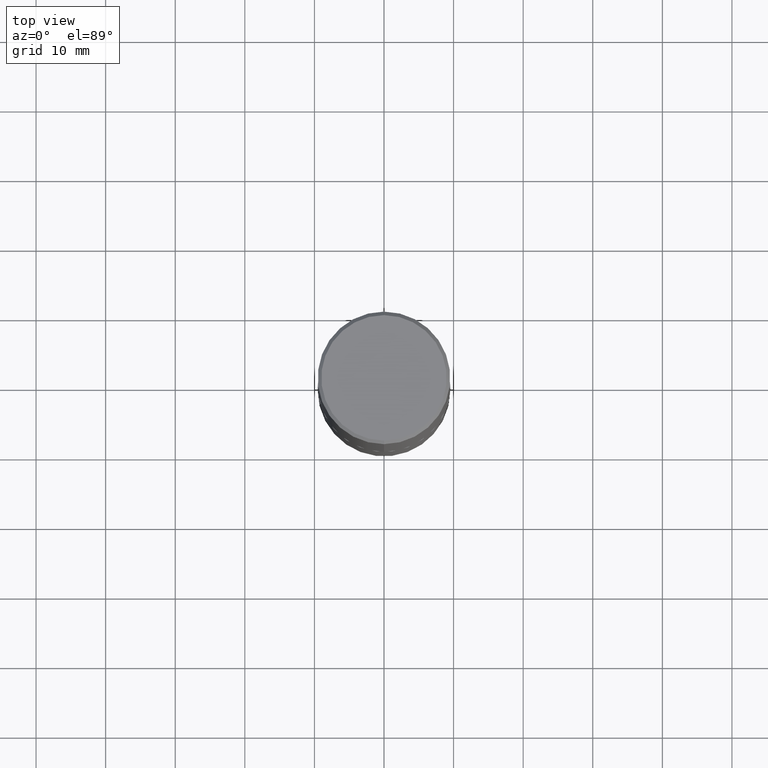
[diagram: clean part render]
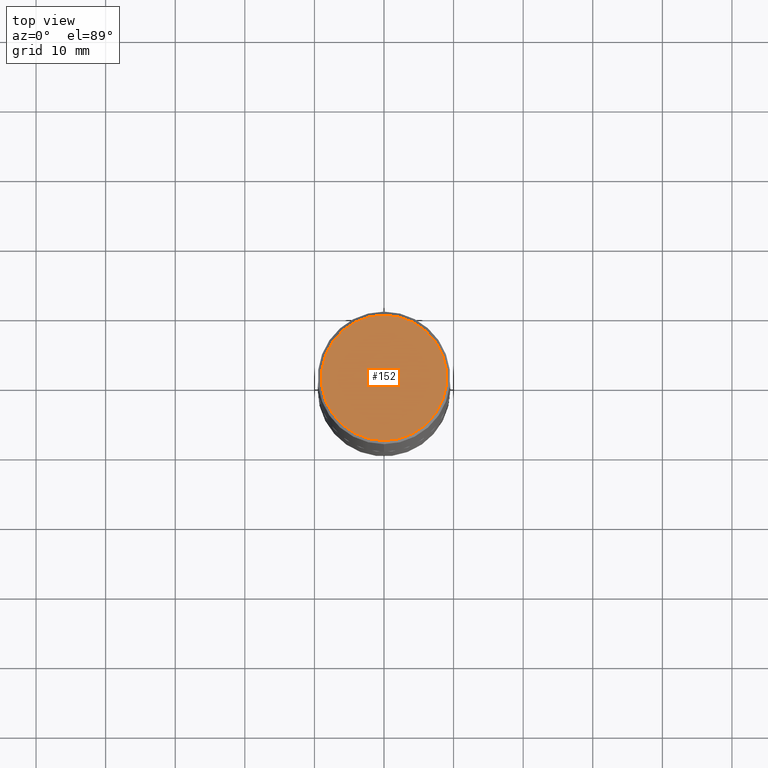
[diagram: same view with one face highlighted and labeled with its STEP entity id]
A machine part, top view. The second image highlights one B-rep face of the part: STEP entity #152.
In plain terms, the highlighted planar face has unit normal (0, -0, -1).
Its self-contained STEP definition (entity closure, byte-faithful):
#16 = CIRCLE ( 'NONE', #358, 0.3550000000000002598 ) ;
#60 = DIRECTION ( 'NONE',  ( 6.982962677686265922E-15, 1.000000000000000000, -3.491356886316728133E-15 ) ) ;
#61 = DIRECTION ( 'NONE',  ( -6.982962677686265922E-15, -1.000000000000000000, 3.491356886316728527E-15 ) ) ;
#62 = EDGE_CURVE ( 'NONE', #375, #205, #266, .T. ) ;
#103 = EDGE_LOOP ( 'NONE', ( #344, #114 ) ) ;
#114 = ORIENTED_EDGE ( 'NONE', *, *, #194, .T. ) ;
#131 = AXIS2_PLACEMENT_3D ( 'NONE', #158, #286, #282 ) ;
#152 = ADVANCED_FACE ( 'NONE', ( #312 ), #412, .F. ) ;
#158 = CARTESIAN_POINT ( 'NONE',  ( 5.533689563900664122E-45, -7.900079756676948008E-31, -2.262753426221999295E-16 ) ) ;
#193 = CARTESIAN_POINT ( 'NONE',  ( 2.478951750578626181E-15, 0.3550000000000002598, -1.352569365953539290E-15 ) ) ;
#194 = EDGE_CURVE ( 'NONE', #205, #375, #16, .T. ) ;
#205 = VERTEX_POINT ( 'NONE', #362 ) ;
#266 = CIRCLE ( 'NONE', #131, 0.3550000000000002598 ) ;
#282 = DIRECTION ( 'NONE',  ( -6.982962677686265922E-15, -1.000000000000000000, 3.491356886316728527E-15 ) ) ;
#286 = DIRECTION ( 'NONE',  ( -2.445555710919848229E-29, 3.491356886316728133E-15, 1.000000000000000000 ) ) ;
#312 = FACE_OUTER_BOUND ( 'NONE', #103, .T. ) ;
#318 = DIRECTION ( 'NONE',  ( 2.445555710919847948E-29, -3.491356886316728133E-15, -1.000000000000000000 ) ) ;
#344 = ORIENTED_EDGE ( 'NONE', *, *, #62, .T. ) ;
#348 = DIRECTION ( 'NONE',  ( -2.445555710919848229E-29, 3.491356886316728133E-15, 1.000000000000000000 ) ) ;
#357 = CARTESIAN_POINT ( 'NONE',  ( 2.548781377355488296E-15, 0.3550000000000002598, -1.465707037264639255E-15 ) ) ;
#358 = AXIS2_PLACEMENT_3D ( 'NONE', #380, #348, #61 ) ;
#362 = CARTESIAN_POINT ( 'NONE',  ( -2.504081769186609399E-15, -0.3550000000000002598, 1.013156352020239593E-15 ) ) ;
#375 = VERTEX_POINT ( 'NONE', #357 ) ;
#380 = CARTESIAN_POINT ( 'NONE',  ( 5.533689563900664122E-45, -7.900079756676948008E-31, -2.262753426221999295E-16 ) ) ;
#384 = AXIS2_PLACEMENT_3D ( 'NONE', #193, #318, #60 ) ;
#412 = PLANE ( 'NONE',  #384 ) ;